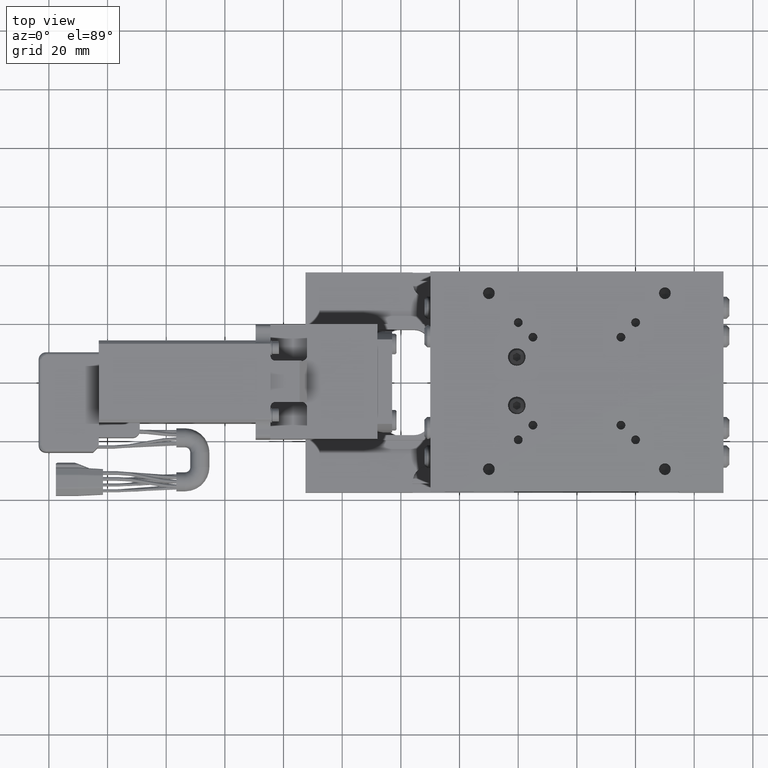
[diagram: clean part render]
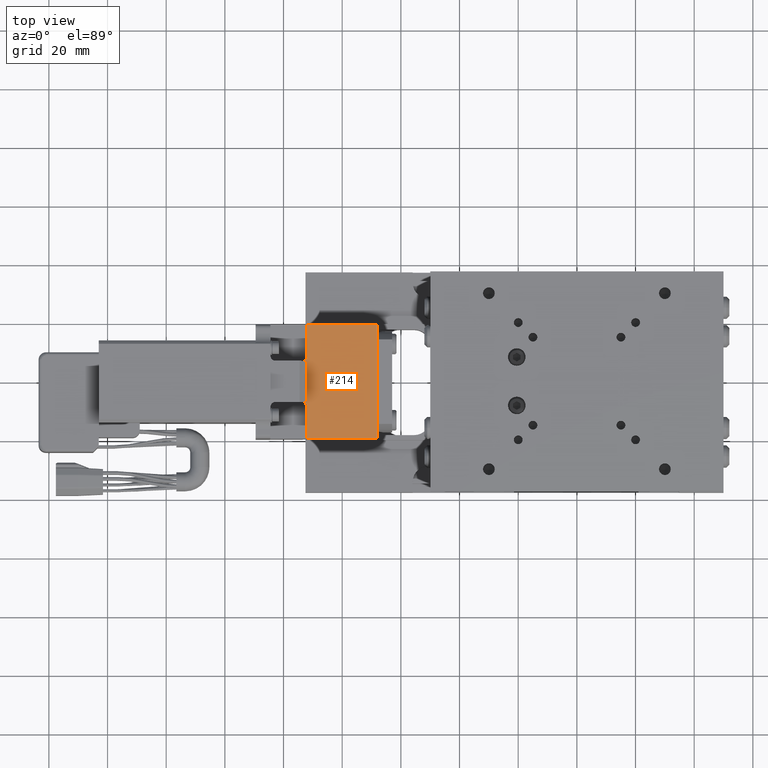
[diagram: same view with one face highlighted and labeled with its STEP entity id]
A machine part, top view. The second image highlights one B-rep face of the part: STEP entity #214.
In plain terms, the highlighted planar face has unit normal (0, 0, 1).
Its self-contained STEP definition (entity closure, byte-faithful):
#214=ADVANCED_FACE('',(#1821),#1820,.T.);
#1820=PLANE('',#11753);
#1821=FACE_OUTER_BOUND('',#11754,.T.);
#11750=CARTESIAN_POINT('',(-9.63800000000E+01,2.34000000000E+01,2.55000000000E+01));
#11751=DIRECTION('',(0.00000000000E+00,0.00000000000E+00,1.00000000000E+00));
#11752=DIRECTION('',(0.00000000000E+00,-1.00000000000E+00,0.00000000000E+00));
#11753=AXIS2_PLACEMENT_3D('',#11750,#11751,#11752);
#11754=EDGE_LOOP('',(#18990,#18991,#18992,#18993,#18994,#18995,#18996,#18997,#18998,#18999));
#18990=ORIENTED_EDGE('',*,*,#23928,.F.);
#18991=ORIENTED_EDGE('',*,*,#23925,.F.);
#18992=ORIENTED_EDGE('',*,*,#23810,.T.);
#18993=ORIENTED_EDGE('',*,*,#23929,.T.);
#18994=ORIENTED_EDGE('',*,*,#23885,.T.);
#18995=ORIENTED_EDGE('',*,*,#23930,.T.);
#18996=ORIENTED_EDGE('',*,*,#23837,.T.);
#18997=ORIENTED_EDGE('',*,*,#23931,.T.);
#18998=ORIENTED_EDGE('',*,*,#23822,.T.);
#18999=ORIENTED_EDGE('',*,*,#23893,.F.);
#23810=EDGE_CURVE('',#27666,#27659,#27667,.T.);
#23822=EDGE_CURVE('',#27750,#27743,#27751,.T.);
#23837=EDGE_CURVE('',#27853,#27846,#27854,.T.);
#23885=EDGE_CURVE('',#28180,#28173,#28181,.T.);
#23893=EDGE_CURVE('',#28224,#27743,#28231,.T.);
#23925=EDGE_CURVE('',#27666,#28423,#28436,.T.);
#23928=EDGE_CURVE('',#28423,#28224,#28454,.T.);
#23929=EDGE_CURVE('',#27659,#28180,#28460,.T.);
#23930=EDGE_CURVE('',#28173,#27853,#28466,.T.);
#23931=EDGE_CURVE('',#27846,#27750,#28472,.T.);
#27659=VERTEX_POINT('',#44043);
#27666=VERTEX_POINT('',#44047);
#27667=CIRCLE('',#44051,1.80000000000E+00);
#27743=VERTEX_POINT('',#44097);
#27750=VERTEX_POINT('',#44101);
#27751=CIRCLE('',#44105,1.80000000000E+00);
#27846=VERTEX_POINT('',#44160);
#27853=VERTEX_POINT('',#44164);
#27854=LINE('',#44165,#44166);
#28173=VERTEX_POINT('',#44351);
#28180=VERTEX_POINT('',#44355);
#28181=LINE('',#44356,#44357);
#28224=VERTEX_POINT('',#44378);
#28231=LINE('',#44382,#44383);
#28423=VERTEX_POINT('',#44500);
#28436=LINE('',#44507,#44508);
#28454=LINE('',#44516,#44517);
#28460=LINE('',#44519,#44520);
#28466=LINE('',#44522,#44523);
#28472=LINE('',#44525,#44526);
#44043=CARTESIAN_POINT('',(-9.20000000000E+01,-8.79999999801E+00,2.55000000000E+01));
#44047=CARTESIAN_POINT('',(-9.38000000000E+01,-6.99999999801E+00,2.55000000000E+01));
#44048=CARTESIAN_POINT('',(-9.38000000000E+01,-8.79999999801E+00,2.55000000000E+01));
#44049=DIRECTION('',(-0.00000000000E+00,-0.00000000000E+00,-1.00000000000E+00));
#44050=DIRECTION('',(-0.00000000000E+00,1.00000000000E+00,-0.00000000000E+00));
#44051=AXIS2_PLACEMENT_3D('',#44048,#44049,#44050);
#44097=CARTESIAN_POINT('',(-9.38000000000E+01,7.00000000001E+00,2.55000000000E+01));
#44101=CARTESIAN_POINT('',(-9.20000000000E+01,8.80000000001E+00,2.55000000000E+01));
#44102=CARTESIAN_POINT('',(-9.38000000000E+01,8.80000000001E+00,2.55000000000E+01));
#44103=DIRECTION('',(-0.00000000000E+00,-0.00000000000E+00,-1.00000000000E+00));
#44104=DIRECTION('',(-0.00000000000E+00,1.00000000000E+00,-0.00000000000E+00));
#44105=AXIS2_PLACEMENT_3D('',#44102,#44103,#44104);
#44160=CARTESIAN_POINT('',(-9.20000000000E+01,1.95000000000E+01,2.55000000000E+01));
#44164=CARTESIAN_POINT('',(-6.80000000000E+01,1.95000000000E+01,2.55000000000E+01));
#44165=CARTESIAN_POINT('',(-6.80000000000E+01,1.95000000000E+01,2.55000000000E+01));
#44166=VECTOR('',#44167,2.40000000000E+01);
#44167=DIRECTION('',(-1.00000000000E+00,0.00000000000E+00,0.00000000000E+00));
#44351=CARTESIAN_POINT('',(-6.80000000000E+01,-1.95000000000E+01,2.55000000000E+01));
#44355=CARTESIAN_POINT('',(-9.20000000000E+01,-1.95000000000E+01,2.55000000000E+01));
#44356=CARTESIAN_POINT('',(-9.20000000000E+01,-1.95000000000E+01,2.55000000000E+01));
#44357=VECTOR('',#44358,2.40000000000E+01);
#44358=DIRECTION('',(1.00000000000E+00,0.00000000000E+00,0.00000000000E+00));
#44378=CARTESIAN_POINT('',(-9.20000000000E+01,7.00000000001E+00,2.55000000000E+01));
#44382=CARTESIAN_POINT('',(-9.20000000000E+01,7.00000000001E+00,2.55000000000E+01));
#44383=VECTOR('',#44384,1.80000000000E+00);
#44384=DIRECTION('',(-1.00000000000E+00,0.00000000000E+00,0.00000000000E+00));
#44500=CARTESIAN_POINT('',(-9.20000000000E+01,-6.99999999801E+00,2.55000000000E+01));
#44507=CARTESIAN_POINT('',(-9.38000000000E+01,-6.99999999801E+00,2.55000000000E+01));
#44508=VECTOR('',#44509,1.80000000000E+00);
#44509=DIRECTION('',(1.00000000000E+00,0.00000000000E+00,0.00000000000E+00));
#44516=CARTESIAN_POINT('',(-9.20000000000E+01,-6.99999999801E+00,2.55000000000E+01));
#44517=VECTOR('',#44518,1.39999999980E+01);
#44518=DIRECTION('',(0.00000000000E+00,1.00000000000E+00,0.00000000000E+00));
#44519=CARTESIAN_POINT('',(-9.20000000000E+01,-8.79999999801E+00,2.55000000000E+01));
#44520=VECTOR('',#44521,1.07000000020E+01);
#44521=DIRECTION('',(0.00000000000E+00,-1.00000000000E+00,0.00000000000E+00));
#44522=CARTESIAN_POINT('',(-6.80000000000E+01,-1.95000000000E+01,2.55000000000E+01));
#44523=VECTOR('',#44524,3.90000000000E+01);
#44524=DIRECTION('',(0.00000000000E+00,1.00000000000E+00,0.00000000000E+00));
#44525=CARTESIAN_POINT('',(-9.20000000000E+01,1.95000000000E+01,2.55000000000E+01));
#44526=VECTOR('',#44527,1.07000000000E+01);
#44527=DIRECTION('',(0.00000000000E+00,-1.00000000000E+00,0.00000000000E+00));